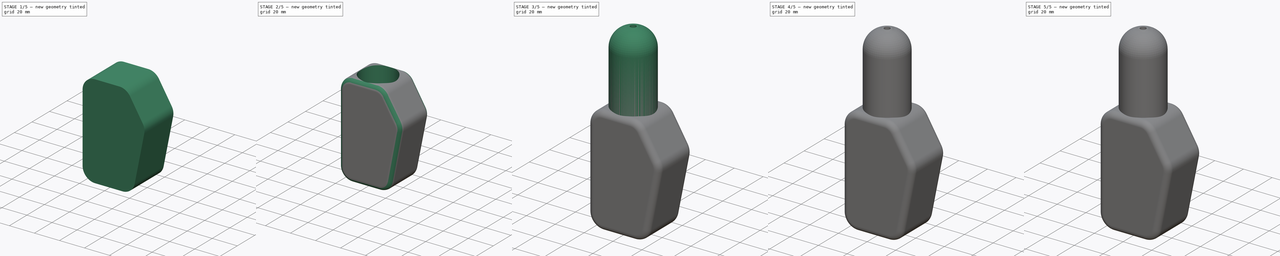
[diagram: build sequence overview — one tinted view per stage of 5, left to right]
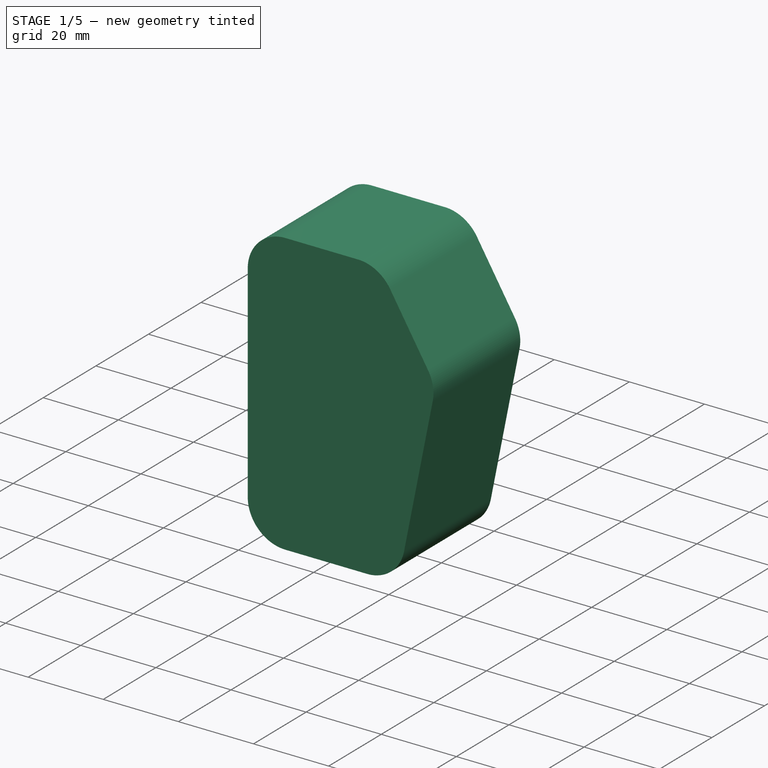
[diagram: stage 1 of 5 — iso view after this stage's code; geometry added in this stage tinted green]
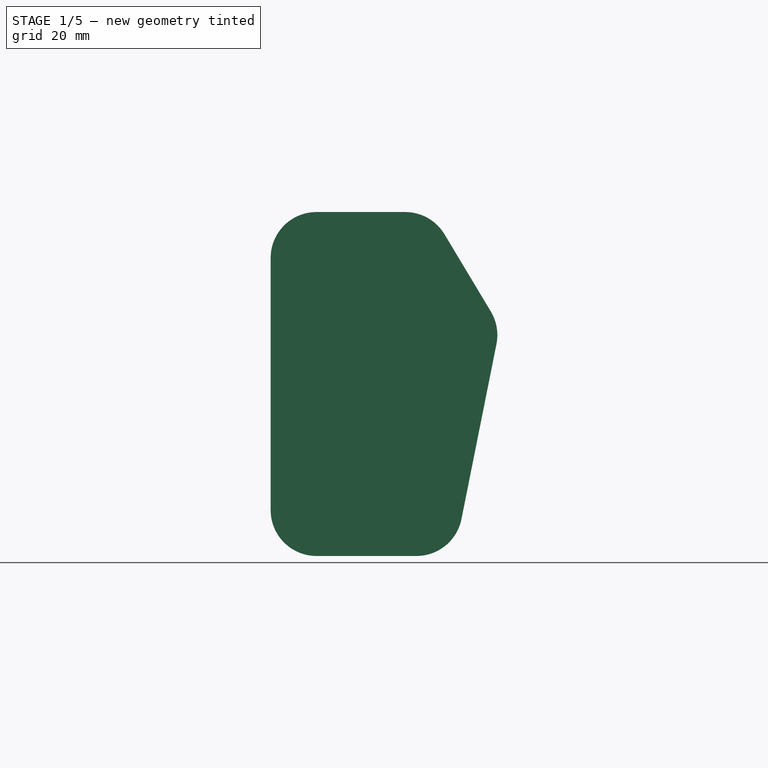
[diagram: stage 1 of 5 — front view after this stage's code; geometry added in this stage tinted green]
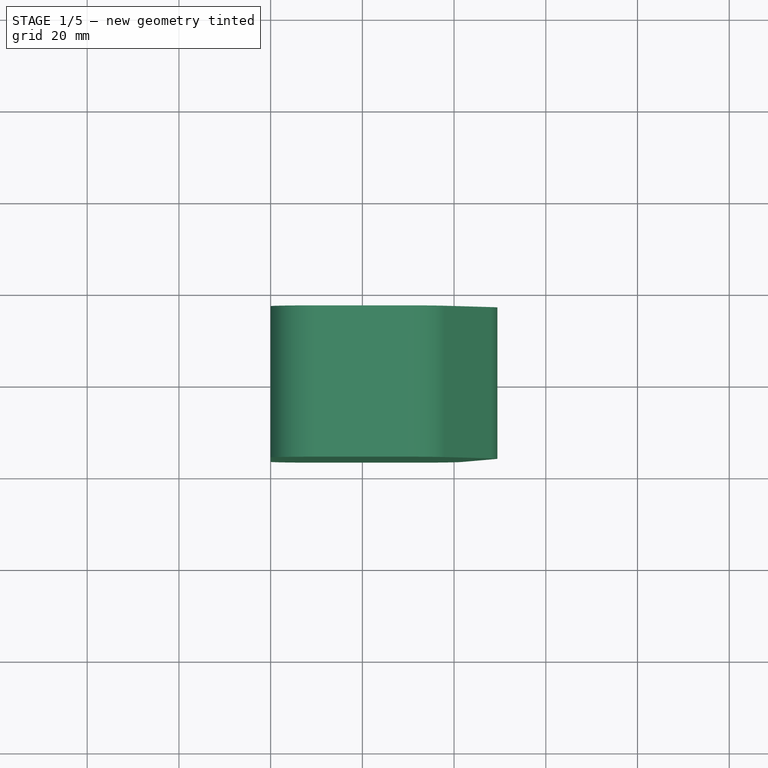
[diagram: stage 1 of 5 — top view after this stage's code; geometry added in this stage tinted green]
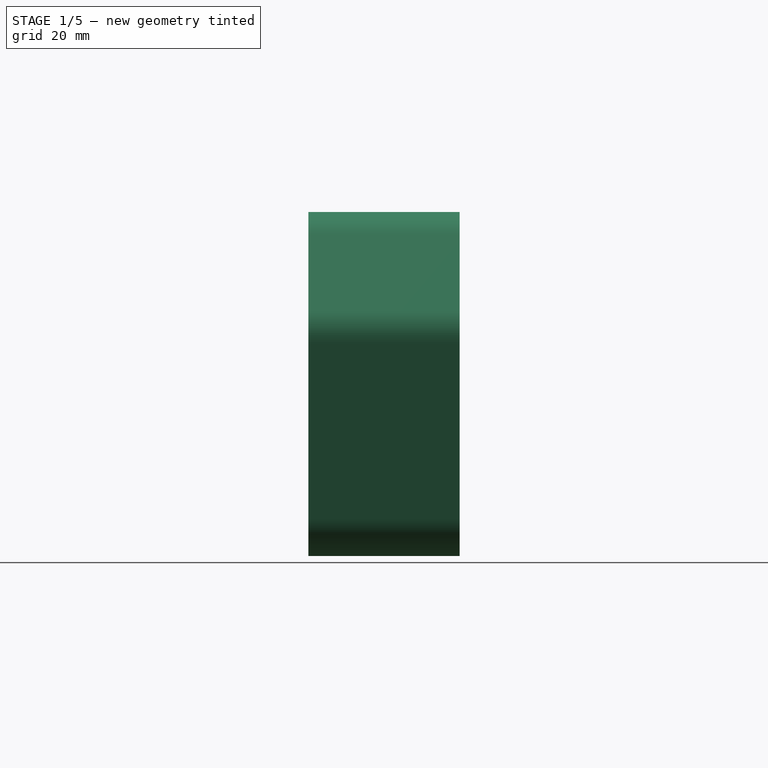
[diagram: stage 1 of 5 — right view after this stage's code; geometry added in this stage tinted green]
FCSTD DOCUMENT  (FreeCAD 1.0RUnknown)
Label: Device_V4
License: All rights reserved
objects: Sketcher::SketchObject×9, PartDesign::Pad×6, PartDesign::Fillet×6, PartDesign::Body×4, PartDesign::Pocket×2, PartDesign::Revolution×1
note: 67 computed .brp shape members not serialized (recipe doc carries the construction recipe); baked Part::Feature solids carry a one-line shape summary decoded from their .brp

FEATURE [PartDesign::Body] Body003  label="몸통003"
  AllowCompound = true
  Group = -> [Sketch006,Revolution,Sketch008,Pad005]
  Origin = -> Origin016
  Placement = pos=(12,10.7,-68) rot=(0,0,1;0rad)
  Tip = -> Pad005
FEATURE [PartDesign::Pad] Pad006
  Direction = (0,-1,2e-16)
  Length = 33
  Length2 = 10
  Midplane = true
  Placement = pos=(0,0,0) rot=(1,0,0;1.5708rad)
  Profile = -> Sketch007
  ReferenceAxis = -> Sketch007 [N_Axis]
  Refine = true
  Suppressed = false
  Type = 0
FEATURE [PartDesign::Fillet] Fillet001
  Base = -> Pad006 [Edge8]
  BaseFeature = -> Pad006
  Placement = pos=(0,0,0) rot=(1,0,0;1.5708rad)
  Radius = 10
  Refine = true
  SupportTransform = false
  Suppressed = false
  UseAllEdges = false
FEATURE [PartDesign::Fillet] Fillet002
  Base = -> Fillet001 [Edge17,Edge18,Edge3,Edge12]
  BaseFeature = -> Fillet001
  Placement = pos=(0,0,0) rot=(1,0,0;1.5708rad)
  Radius = 10
  Refine = true
  SupportTransform = false
  Suppressed = false
  UseAllEdges = false
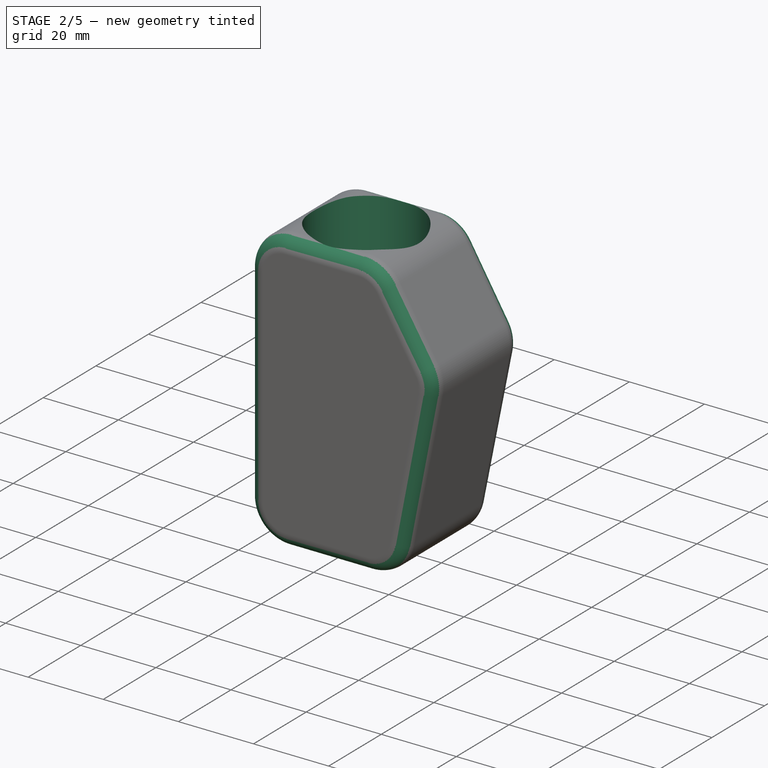
[diagram: stage 2 of 5 — iso view after this stage's code; geometry added in this stage tinted green]
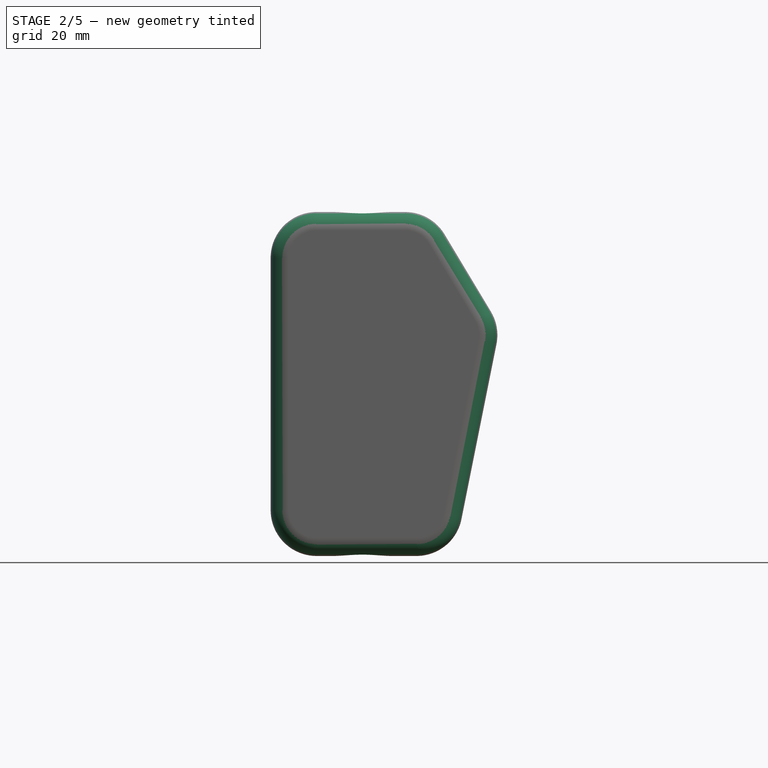
[diagram: stage 2 of 5 — front view after this stage's code; geometry added in this stage tinted green]
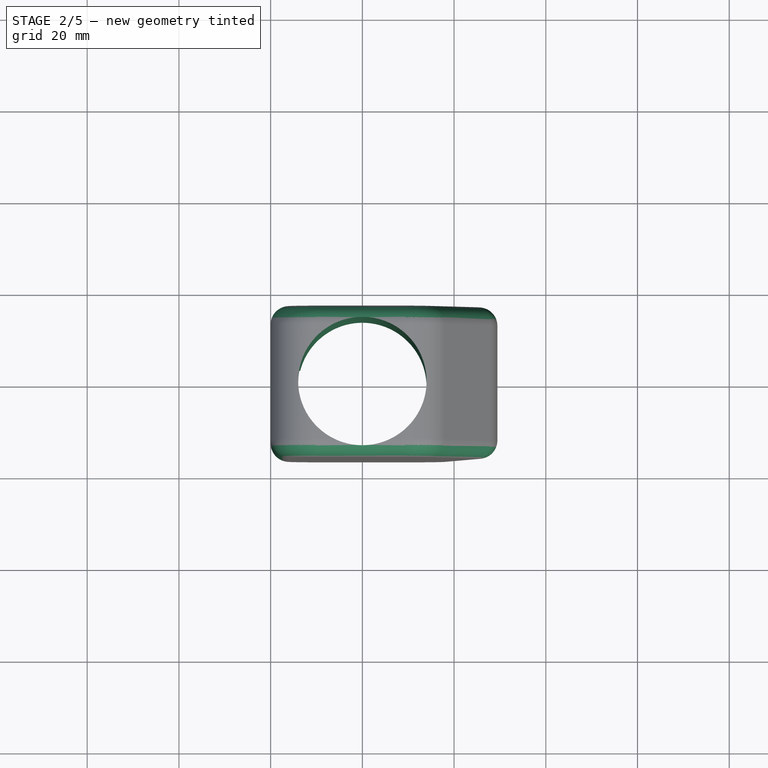
[diagram: stage 2 of 5 — top view after this stage's code; geometry added in this stage tinted green]
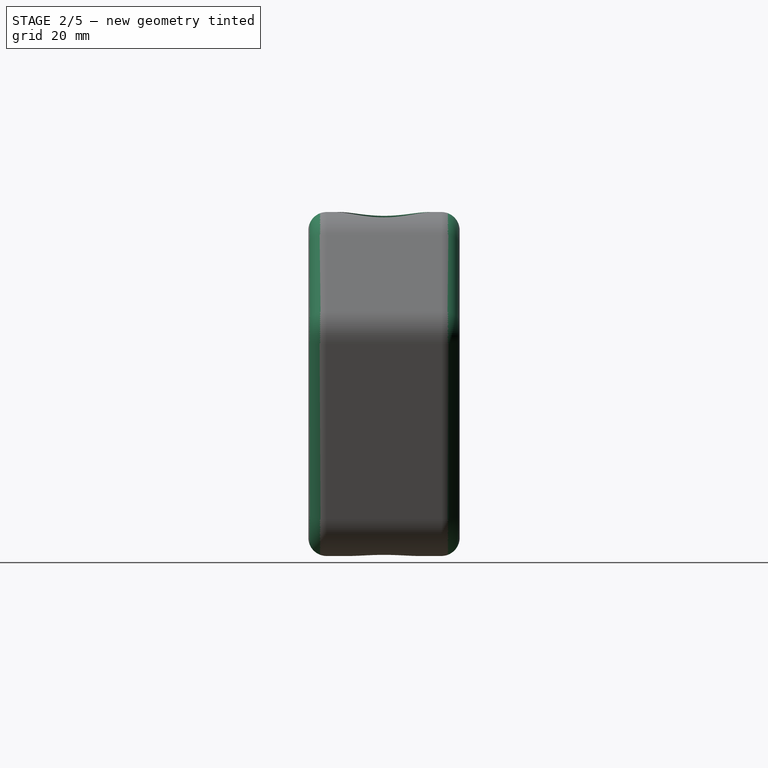
[diagram: stage 2 of 5 — right view after this stage's code; geometry added in this stage tinted green]
FEATURE [PartDesign::Fillet] Fillet003
  Base = -> Fillet002 [Edge22,Edge11]
  BaseFeature = -> Fillet002
  Placement = pos=(0,0,0) rot=(1,0,0;1.5708rad)
  Radius = 4
  Refine = true
  SupportTransform = false
  Suppressed = false
  UseAllEdges = false
FEATURE [Sketcher::SketchObject] Sketch009
  ArcFitTolerance = 1e-06
  AttachmentSupport = -> [Fillet003]
  FullyConstrained = true
  MakeInternals = false
  MapMode = 5
  Placement = pos=(0,1.54e-14,35) rot=(0,0,1;3.14159rad)
  sketch-geometry (1):
    g0: Circle CenterX=0 CenterY=0 CenterZ=0 NormalX=0 NormalY=0 NormalZ=1 AngleXU=0 Radius=14
  constraints (2):
    c: Diameter(g0) = 28
    c: Coincident(g0,g-1)
FEATURE [PartDesign::Pocket] Pocket
  BaseFeature = -> Fillet003
  Direction = (0,0,-1)
  Length = 5
  Length2 = 5
  Placement = pos=(0,0,0) rot=(1,0,0;1.5708rad)
  Profile = -> Sketch009
  ReferenceAxis = -> Sketch009 [N_Axis]
  Refine = true
  Suppressed = false
  Type = 1
FEATURE [Sketcher::SketchObject] Sketch010
  ArcFitTolerance = 1e-06
  AttachmentSupport = -> [Pocket]
  FullyConstrained = true
  MakeInternals = false
  MapMode = 5
  Placement = pos=(0,-1.76e-14,-40) rot=(1,0,0;3.14159rad)
  sketch-geometry (5):
    g0: ArcOfCircle CenterX=0 CenterY=0 CenterZ=0 NormalX=0 NormalY=0 NormalZ=1 AngleXU=0 Radius=14 StartAngle=2.88891 EndAngle=3.39427
    g1: LineSegment StartX=-13.5554 StartY=3.5 StartZ=0 EndX=-17.5554 EndY=3.5 EndZ=0
    g2: LineSegment StartX=-17.5554 StartY=3.5 StartZ=0 EndX=-17.5554 EndY=-3.5 EndZ=0
    g3: LineSegment StartX=-17.5554 StartY=-3.5 StartZ=0 EndX=-13.5554 EndY=-3.5 EndZ=0
    g4: GeomPoint X=-13.5554 Y=0 Z=0
  constraints (13):
    c: Equal(g-3,g0)
    c: Coincident(g1,g0)
    c: Horizontal(g1)
    c: Coincident(g2,g1)
    c: Vertical(g2)
    c: Coincident(g3,g2)
    c: Coincident(g3,g0)
    c: Horizontal(g3)
    c: DistanceY(g2,g2) = 7
    c: DistanceX(g1,g1) = 4
    c: Coincident(g0,g-1)
    c: Symmetric(g0,g0,g4)
    c: PointOnObject(g4,g-1)
FEATURE [PartDesign::Pocket] Pocket001
  BaseFeature = -> Pocket
  Direction = (0,0,1)
  Length = 53
  Length2 = 5
  Placement = pos=(0,0,0) rot=(1,0,0;1.5708rad)
  Profile = -> Sketch010
  ReferenceAxis = -> Sketch010 [N_Axis]
  Refine = true
  Suppressed = false
  Type = 0
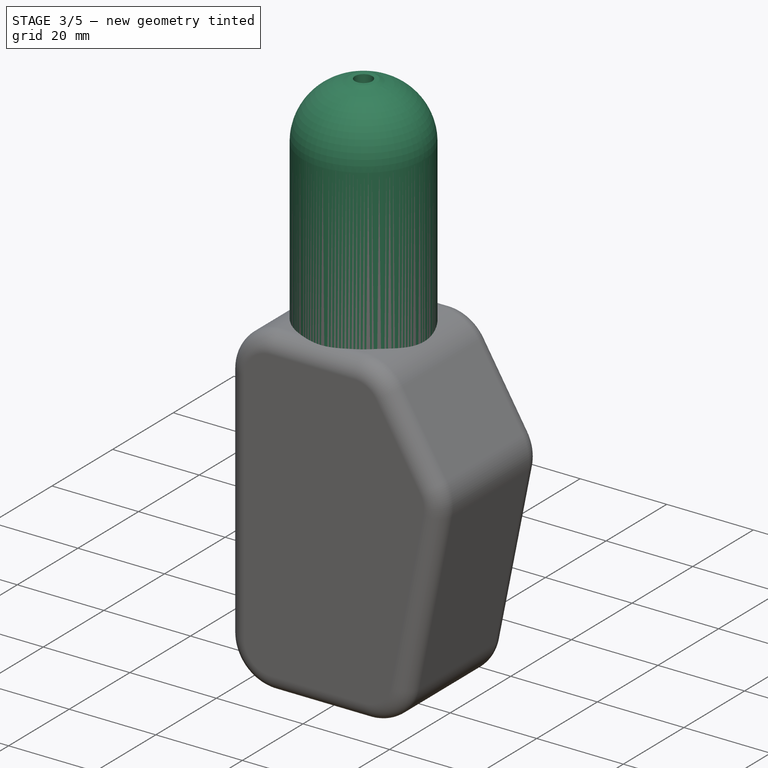
[diagram: stage 3 of 5 — iso view after this stage's code; geometry added in this stage tinted green]
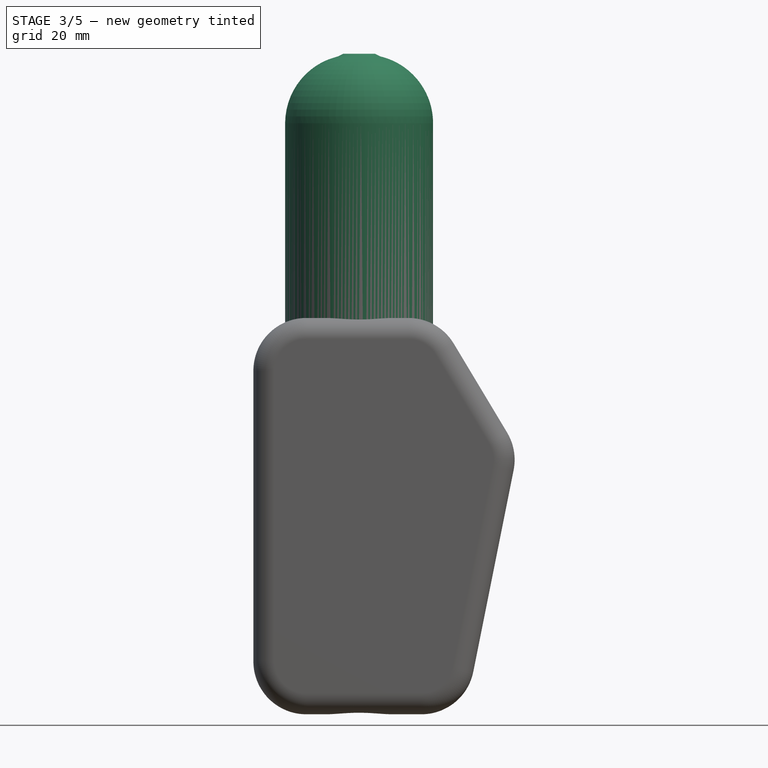
[diagram: stage 3 of 5 — front view after this stage's code; geometry added in this stage tinted green]
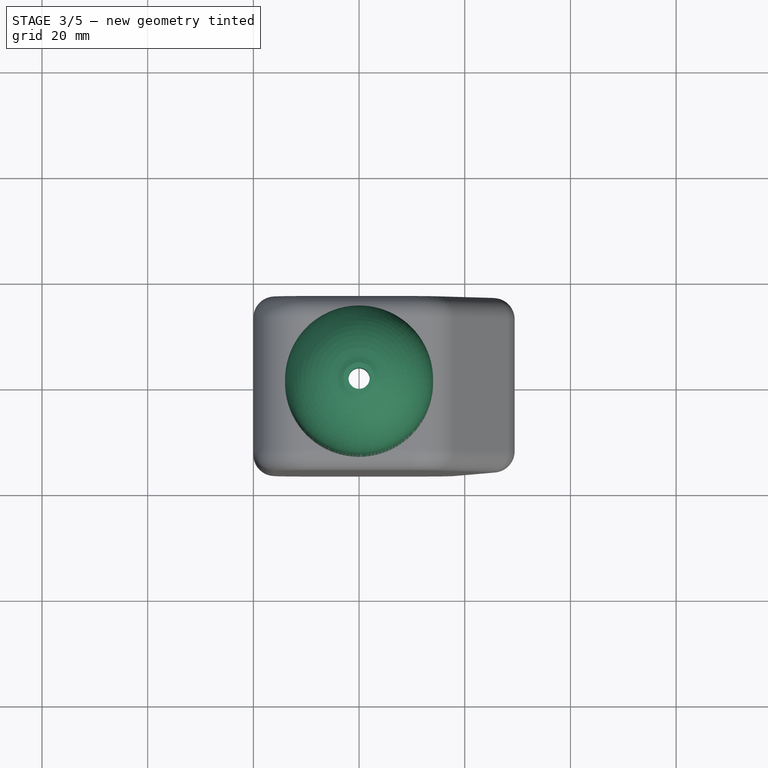
[diagram: stage 3 of 5 — top view after this stage's code; geometry added in this stage tinted green]
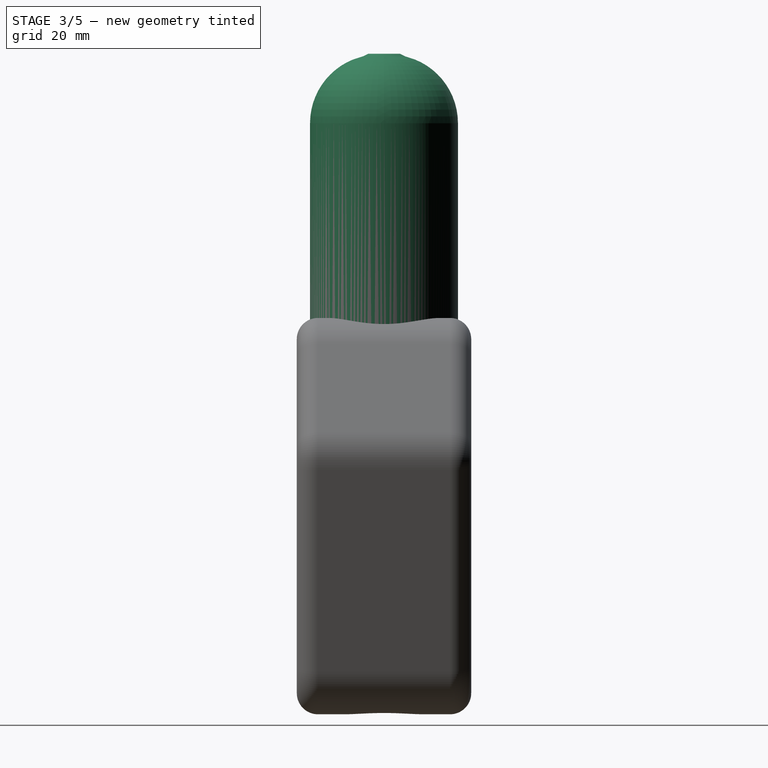
[diagram: stage 3 of 5 — right view after this stage's code; geometry added in this stage tinted green]
FEATURE [PartDesign::Body] Body  label="몸통"
  AllowCompound = true
  Group = -> [Sketch,Pad,Sketch001,Pad001,Sketch005,Pad004,Fillet]
  Origin = -> Origin
  Tip = -> Fillet
FEATURE [Sketcher::SketchObject] Sketch006
  ArcFitTolerance = 1e-06
  AttachmentSupport = -> [XZ_Plane008]
  FullyConstrained = true
  MakeInternals = false
  MapMode = 5
  Placement = pos=(0,0,0) rot=(1,0,0;1.5708rad)
  sketch-geometry (11):
    g0: ArcOfCircle CenterX=1 CenterY=71.8509 CenterZ=0 NormalX=0 NormalY=0 NormalZ=1 AngleXU=0 Radius=13 StartAngle=0 EndAngle=1.33793
    g1: LineSegment StartX=4 StartY=84.5 StartZ=0 EndX=3 EndY=85 EndZ=0
    g2: LineSegment StartX=3 StartY=85 StartZ=0 EndX=2 EndY=85 EndZ=0
    g3: LineSegment StartX=2 StartY=85 StartZ=0 EndX=2 EndY=75 EndZ=0
    g4: LineSegment StartX=2 StartY=75 StartZ=0 EndX=10 EndY=70 EndZ=0
    g5: LineSegment StartX=10 StartY=70 StartZ=0 EndX=10 EndY=0 EndZ=0
    g6: LineSegment [constr] StartX=10 StartY=0 StartZ=0 EndX=14 EndY=0 EndZ=0
    g7: LineSegment [constr] StartX=14 StartY=0 StartZ=0 EndX=14 EndY=71.8509 EndZ=0
    g8: LineSegment StartX=14 StartY=71.8509 StartZ=0 EndX=14 EndY=46.8509 EndZ=0
    g9: LineSegment StartX=14 StartY=46.8509 StartZ=0 EndX=14 EndY=0 EndZ=0
    g10: LineSegment StartX=14 StartY=0 StartZ=0 EndX=10 EndY=0 EndZ=0
  constraints (33):
    c: Coincident(g0,g1)
    c: Coincident(g1,g2)
    c: Horizontal(g2)
    c: Coincident(g2,g3)
    c: Vertical(g3)
    c: Coincident(g3,g4)
    c: Coincident(g4,g5)
    c: Vertical(g5)
    c: Coincident(g5,g6)
    c: Horizontal(g6)
    c: Coincident(g6,g7)
    c: Coincident(g7,g0)
    c: Vertical(g7)
    c: PointOnObject(g5,g-1)
    c: DistanceX(g-1,g3) = 2
    c: DistanceX(g-1,g4) = 10
    c: DistanceY(g5,g5) = 70
    c: DistanceY(g0,g2) = 0.5
    c: DistanceX(g2,g2) = 1
    c: DistanceX(g1,g0) = 1
    c: DistanceY(g3,g3) = 10
    c: DistanceY(g4,g3) = 5
    c: Radius(g0) = 13
    c: Horizontal(g0,g0)
    c: DistanceX(g-1,g0) = 14
    c: Coincident(g8,g0)
    c: PointOnObject(g9,g-1)
    c: Vertical(g9)
    c: Coincident(g10,g9)
    c: Coincident(g10,g5)
    c: DistanceY(g8,g8) = 25
    c: Vertical(g8)
    c: Coincident(g9,g8)
FEATURE [PartDesign::Revolution] Revolution
  Angle = 360
  Angle2 = 60
  Axis = (0,2e-16,1)
  Base = (0,0,0)
  Placement = pos=(0,0,0) rot=(1,0,0;1.5708rad)
  Profile = -> Sketch006
  ReferenceAxis = -> Sketch006 [V_Axis]
  Refine = true
  Reversed = true
  Suppressed = false
  Type = 0
FEATURE [PartDesign::Fillet] Fillet004
  Base = -> Pocket001 [Edge33,Edge25]
  BaseFeature = -> Pocket001
  Placement = pos=(0,0,0) rot=(1,0,0;1.5708rad)
  Radius = 1
  Refine = true
  SupportTransform = false
  Suppressed = false
  UseAllEdges = false
FEATURE [PartDesign::Fillet] Fillet005
  Base = -> Pocket001 [Edge7]
  BaseFeature = -> Pocket001
  Placement = pos=(0,0,0) rot=(1,0,0;1.5708rad)
  Radius = 1
  Refine = true
  SupportTransform = false
  Suppressed = false
  UseAllEdges = false
FEATURE [PartDesign::Body] Body004  label="몸통004"
  AllowCompound = true
  Group = -> [Sketch007,Pad006,Fillet001,Fillet002,Fillet003,Sketch009,Pocket,Sketch010,Pocket001,Fillet004,Fillet005]
  Origin = -> Origin017
  Placement = pos=(12,10.7,-31) rot=(0,0,1;0rad)
  Tip = -> Fillet005
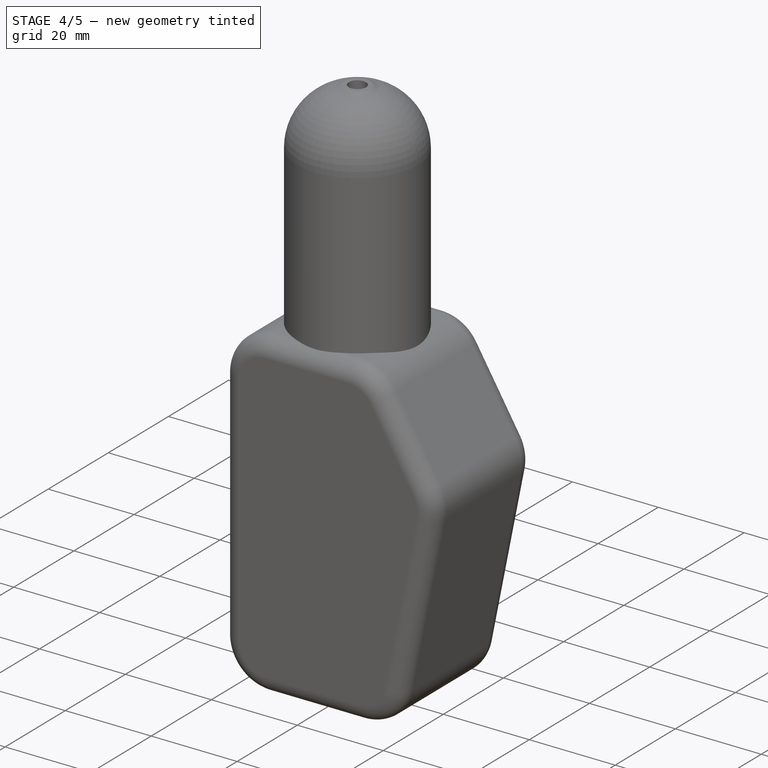
[diagram: stage 4 of 5 — iso view after this stage's code; geometry added in this stage tinted green]
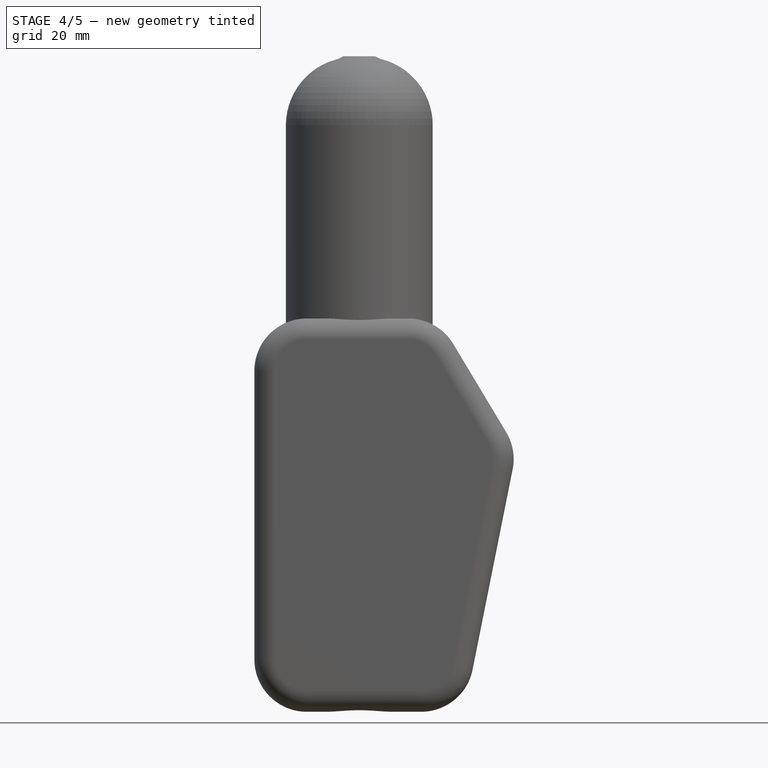
[diagram: stage 4 of 5 — front view after this stage's code; geometry added in this stage tinted green]
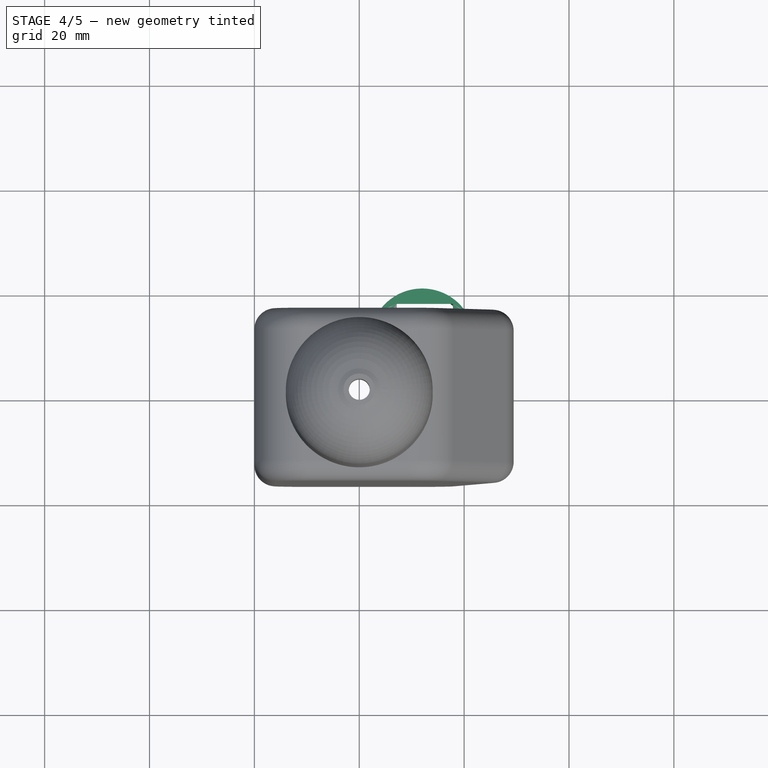
[diagram: stage 4 of 5 — top view after this stage's code; geometry added in this stage tinted green]
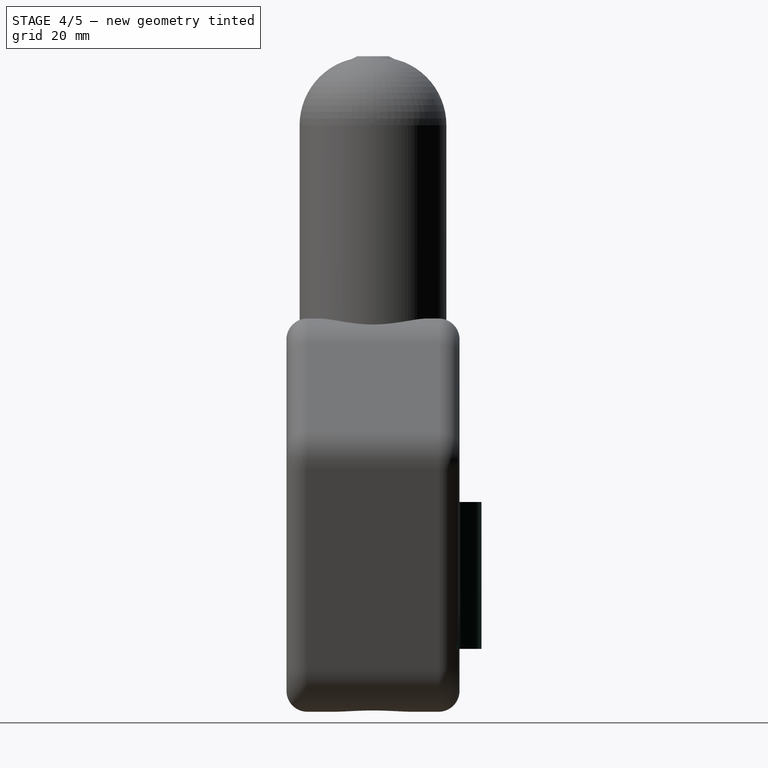
[diagram: stage 4 of 5 — right view after this stage's code; geometry added in this stage tinted green]
FEATURE [Sketcher::SketchObject] Sketch
  ArcFitTolerance = 1e-06
  AttachmentSupport = -> [Origin]
  FullyConstrained = true
  MakeInternals = false
  MapMode = 5
  sketch-geometry (2):
    g0: Circle CenterX=12 CenterY=10.7 CenterZ=0 NormalX=0 NormalY=0 NormalZ=1 AngleXU=0 Radius=9.25
    g1: Circle CenterX=12 CenterY=10.7 CenterZ=0 NormalX=0 NormalY=0 NormalZ=1 AngleXU=0 Radius=10
  constraints (5):
    c: Diameter(g0) = 18.5
    c: DistanceY(g-1,g0) = 10.7
    c: DistanceX(g-1,g0) = 12
    c: Diameter(g1) = 20
    c: Coincident(g1,g0)
FEATURE [PartDesign::Pad] Pad
  Direction = (0,0,1)
  Length = 28
  Length2 = 10
  Profile = -> Sketch
  ReferenceAxis = -> Sketch [N_Axis]
  Refine = true
  Reversed = true
  Suppressed = false
  Type = 0
FEATURE [Sketcher::SketchObject] Sketch001
  ArcFitTolerance = 1e-06
  AttachmentSupport = -> [Pad]
  ExternalGeometry = -> [Pad]
  FullyConstrained = true
  MakeInternals = false
  MapMode = 5
  sketch-geometry (5):
    g0: LineSegment StartX=7.15 StartY=17.8 StartZ=0 EndX=7.15 EndY=4.3 EndZ=0
    g1: LineSegment StartX=7.15 StartY=4.3 StartZ=0 EndX=17.85 EndY=4.3 EndZ=0
    g2: LineSegment StartX=17.85 StartY=4.3 StartZ=0 EndX=17.85 EndY=17.8 EndZ=0
    g3: LineSegment StartX=17.85 StartY=17.8 StartZ=0 EndX=7.15 EndY=17.8 EndZ=0
    g4: Circle CenterX=12 CenterY=10.7 CenterZ=0 NormalX=0 NormalY=0 NormalZ=1 AngleXU=0 Radius=10
  constraints (14):
    c: Coincident(g0,g1)
    c: Coincident(g1,g2)
    c: Coincident(g2,g3)
    c: Coincident(g3,g0)
    c: Vertical(g0)
    c: Vertical(g2)
    c: Horizontal(g1)
    c: Horizontal(g3)
    c: Distance(g0,g2) = 10.7
    c: Distance(g1,g3) = 13.5
    c: DistanceY(g-1,g0) = 4.3
    c: DistanceX(g-1,g0) = 7.15
    c: Coincident(g4,g-3)
    c: Equal(g4,g-3)
FEATURE [PartDesign::Pad] Pad001
  BaseFeature = -> Pad
  Direction = (0,0,1)
  Length = 2
  Length2 = 10
  Profile = -> Sketch001
  ReferenceAxis = -> Sketch001 [N_Axis]
  Refine = true
  Reversed = true
  Suppressed = false
  Type = 0
FEATURE [Sketcher::SketchObject] Sketch007
  ArcFitTolerance = 1e-06
  AttachmentSupport = -> [XZ_Plane009]
  FullyConstrained = true
  MakeInternals = false
  MapMode = 5
  Placement = pos=(0,0,0) rot=(1,0,0;1.5708rad)
  sketch-geometry (5):
    g0: LineSegment StartX=-20 StartY=35 StartZ=0 EndX=-20 EndY=-40 EndZ=0
    g1: LineSegment StartX=-20 StartY=-40 StartZ=0 EndX=20 EndY=-40 EndZ=0
    g2: LineSegment StartX=20 StartY=-40 StartZ=0 EndX=30 EndY=10 EndZ=0
    g3: LineSegment StartX=30 StartY=10 StartZ=0 EndX=15 EndY=35 EndZ=0
    g4: LineSegment StartX=-20 StartY=35 StartZ=0 EndX=15 EndY=35 EndZ=0
  constraints (15):
    c: Vertical(g0)
    c: Coincident(g0,g1)
    c: Horizontal(g1)
    c: Coincident(g1,g2)
    c: Coincident(g2,g3)
    c: Horizontal(g4)
    c: Coincident(g4,g3)
    c: Coincident(g0,g4)
    c: DistanceY(g-1,g0) = 35
    c: DistanceX(g0,g-1) = 20
    c: DistanceX(g4,g4) = 35
    c: DistanceX(g1,g1) = 40
    c: DistanceY(g0,g0) = 75
    c: DistanceY(g-1,g2) = 10
    c: DistanceX(g-1,g2) = 30
FEATURE [Sketcher::SketchObject] Sketch008
  ArcFitTolerance = 1e-06
  AttachmentSupport = -> [Revolution]
  ExternalGeometry = -> [Revolution]
  FullyConstrained = true
  MakeInternals = false
  MapMode = 5
  Placement = pos=(0,0,0) rot=(1,0,0;3.14159rad)
  sketch-geometry (5):
    g0: ArcOfCircle CenterX=-1.6e-15 CenterY=1.4e-15 CenterZ=0 NormalX=0 NormalY=0 NormalZ=1 AngleXU=0 Radius=14 StartAngle=2.88891 EndAngle=3.39427
    g1: LineSegment StartX=-13.5554 StartY=3.5 StartZ=0 EndX=-16.5554 EndY=3.5 EndZ=0
    g2: LineSegment StartX=-16.5554 StartY=3.5 StartZ=0 EndX=-16.5554 EndY=-3.5 EndZ=0
    g3: LineSegment StartX=-16.5554 StartY=-3.5 StartZ=0 EndX=-13.5554 EndY=-3.5 EndZ=0
    g4: GeomPoint X=-16.5554 Y=0 Z=0
  constraints (14):
    c: PointOnObject(g0,g-3)
    c: PointOnObject(g0,g-3)
    c: Equal(g0,g-3)
    c: Coincident(g0,g1)
    c: Coincident(g1,g2)
    c: Coincident(g2,g3)
    c: Coincident(g3,g0)
    c: Vertical(g2)
    c: Horizontal(g3)
    c: Horizontal(g1)
    c: Symmetric(g2,g1,g4)
    c: PointOnObject(g4,g-1)
    c: DistanceX(g1,g1) = 3
    c: DistanceY(g2,g2) = 7
FEATURE [PartDesign::Pad] Pad005
  BaseFeature = -> Revolution
  Direction = (0,0,-1)
  Length = 10
  Length2 = 10
  Placement = pos=(0,0,0) rot=(1,0,0;1.5708rad)
  Profile = -> Sketch008
  ReferenceAxis = -> Sketch008 [N_Axis]
  Refine = true
  Reversed = true
  Suppressed = false
  Type = 0
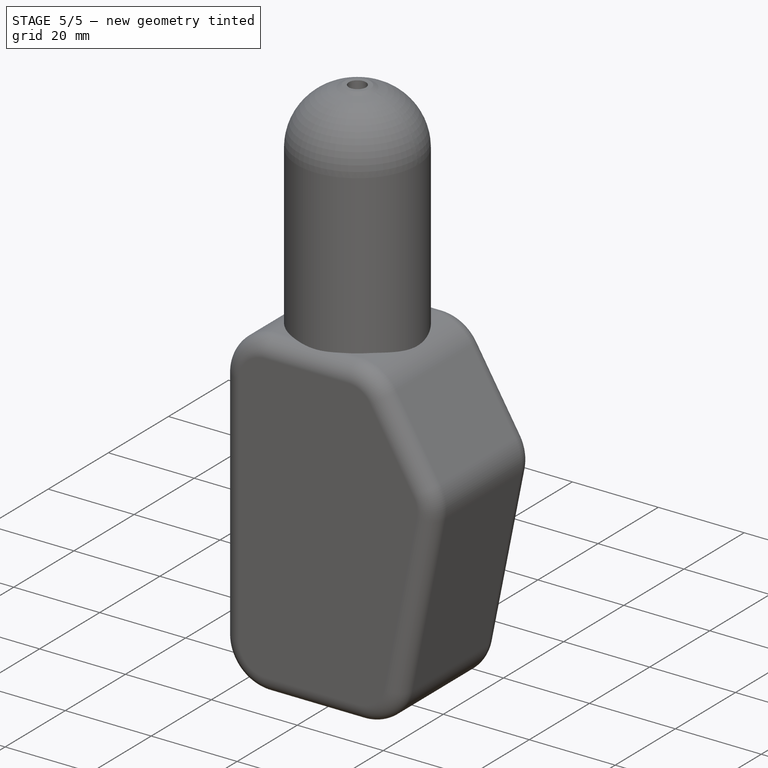
[diagram: stage 5 of 5 — iso view after this stage's code; geometry added in this stage tinted green]
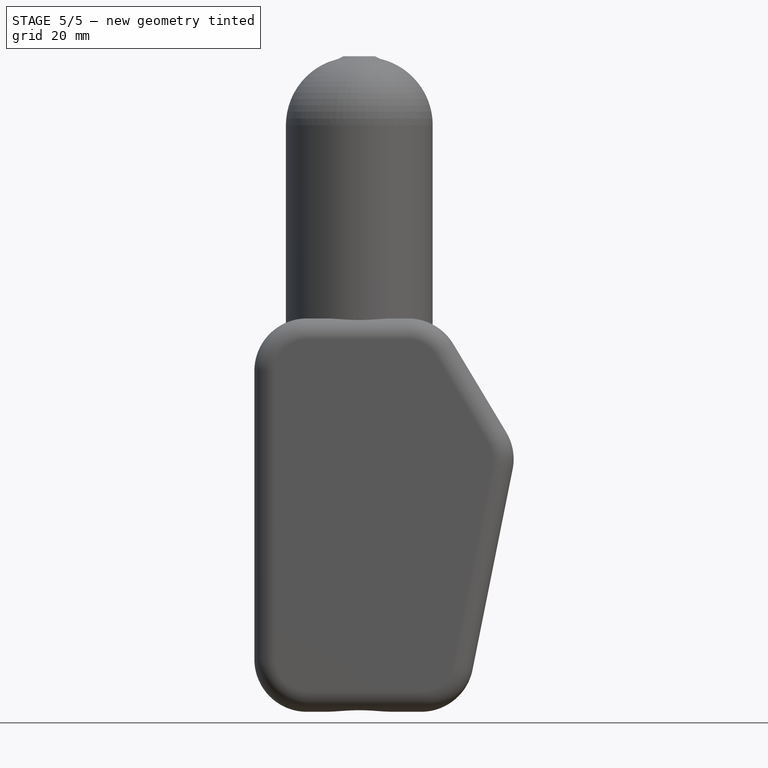
[diagram: stage 5 of 5 — front view after this stage's code; geometry added in this stage tinted green]
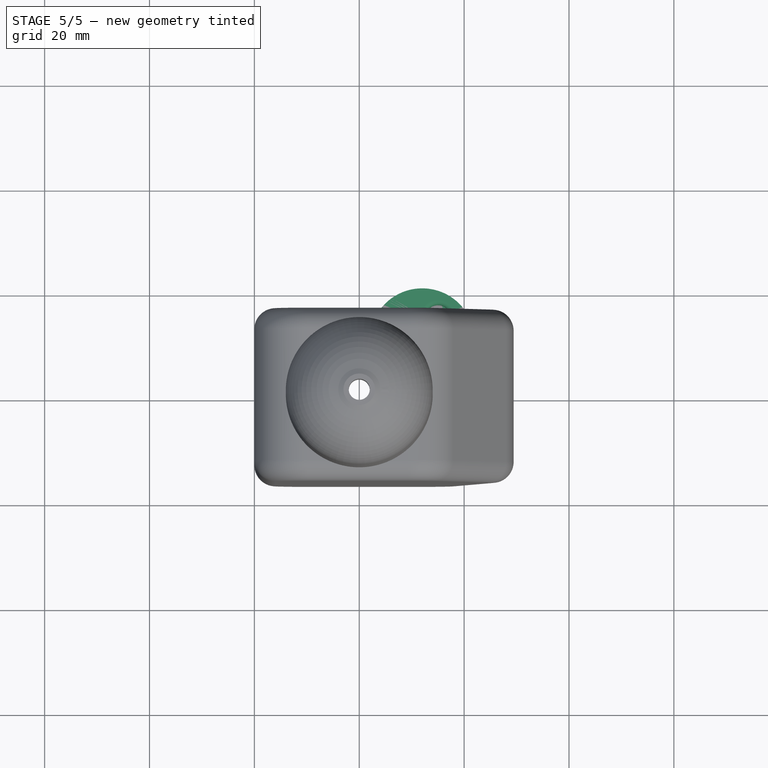
[diagram: stage 5 of 5 — top view after this stage's code; geometry added in this stage tinted green]
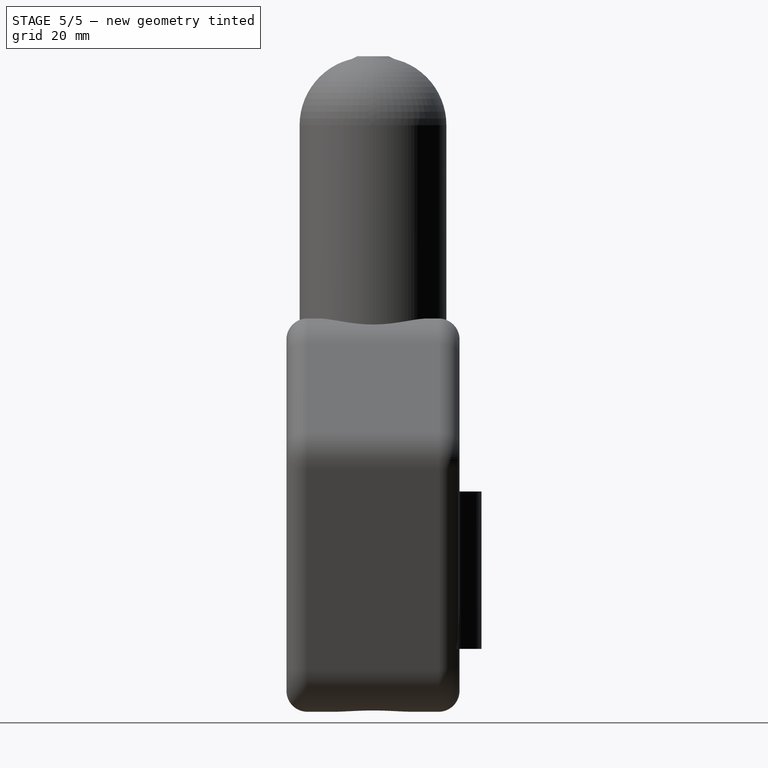
[diagram: stage 5 of 5 — right view after this stage's code; geometry added in this stage tinted green]
FEATURE [Sketcher::SketchObject] Sketch004
  ArcFitTolerance = 1e-06
  AttachmentOffset = pos=(0,0,-28) rot=(0,0,1;0rad)
  AttachmentSupport = -> [Origin015]
  FullyConstrained = true
  MakeInternals = false
  MapMode = 5
  Placement = pos=(0,0,-28) rot=(0,0,1;0rad)
  sketch-geometry (5):
    g0: Circle CenterX=12 CenterY=10.7 CenterZ=0 NormalX=0 NormalY=0 NormalZ=1 AngleXU=0 Radius=9.25
    g1: LineSegment StartX=6 StartY=7 StartZ=0 EndX=18 EndY=7 EndZ=0
    g2: LineSegment StartX=18 StartY=7 StartZ=0 EndX=18 EndY=10 EndZ=0
    g3: LineSegment StartX=18 StartY=10 StartZ=0 EndX=6 EndY=10 EndZ=0
    g4: LineSegment StartX=6 StartY=10 StartZ=0 EndX=6 EndY=7 EndZ=0
  constraints (15):
    c: Diameter(g0) = 18.5
    c: DistanceY(g-1,g0) = 10.7
    c: DistanceX(g-1,g0) = 12
    c: Coincident(g1,g2)
    c: Coincident(g2,g3)
    c: Coincident(g3,g4)
    c: Coincident(g4,g1)
    c: Horizontal(g1)
    c: Horizontal(g3)
    c: Vertical(g2)
    c: Vertical(g4)
    c: Distance(g2,g4) = 12
    c: Distance(g1,g3) = 3
    c: DistanceY(g-1,g1) = 7
    c: DistanceX(g-1,g1) = 6
FEATURE [PartDesign::Pad] Pad003
  Direction = (0,0,1)
  Length = 1.5
  Length2 = 10
  Profile = -> Sketch004
  ReferenceAxis = -> Sketch004 [N_Axis]
  Refine = true
  Suppressed = false
  Type = 0
FEATURE [PartDesign::Body] Body002  label="몸통002"
  AllowCompound = true
  Group = -> [Sketch004,Pad003]
  Origin = -> Origin015
  Tip = -> Pad003
FEATURE [Sketcher::SketchObject] Sketch005
  ArcFitTolerance = 1e-06
  AttachmentSupport = -> [Pad001]
  ExternalGeometry = -> [Pad001]
  FullyConstrained = true
  MakeInternals = false
  MapMode = 5
  sketch-geometry (2):
    g0: Circle CenterX=12 CenterY=10.7 CenterZ=0 NormalX=0 NormalY=0 NormalZ=1 AngleXU=0 Radius=10
    g1: Circle CenterX=15 CenterY=15 CenterZ=0 NormalX=0 NormalY=0 NormalZ=1 AngleXU=0 Radius=2.5
  constraints (5):
    c: Coincident(g0,g-3)
    c: Equal(g0,g-3)
    c: Diameter(g1) = 5
    c: DistanceY(g0,g1) = 4.3
    c: DistanceX(g0,g1) = 3
FEATURE [PartDesign::Pad] Pad004
  BaseFeature = -> Pad001
  Direction = (0,0,1)
  Length = 2
  Length2 = 10
  Profile = -> Sketch005
  ReferenceAxis = -> Sketch005 [N_Axis]
  Refine = true
  Suppressed = false
  Type = 0
FEATURE [PartDesign::Fillet] Fillet
  Base = -> Pad004 [Edge19]
  BaseFeature = -> Pad004
  Radius = 1
  Refine = true
  SupportTransform = false
  Suppressed = false
  UseAllEdges = false
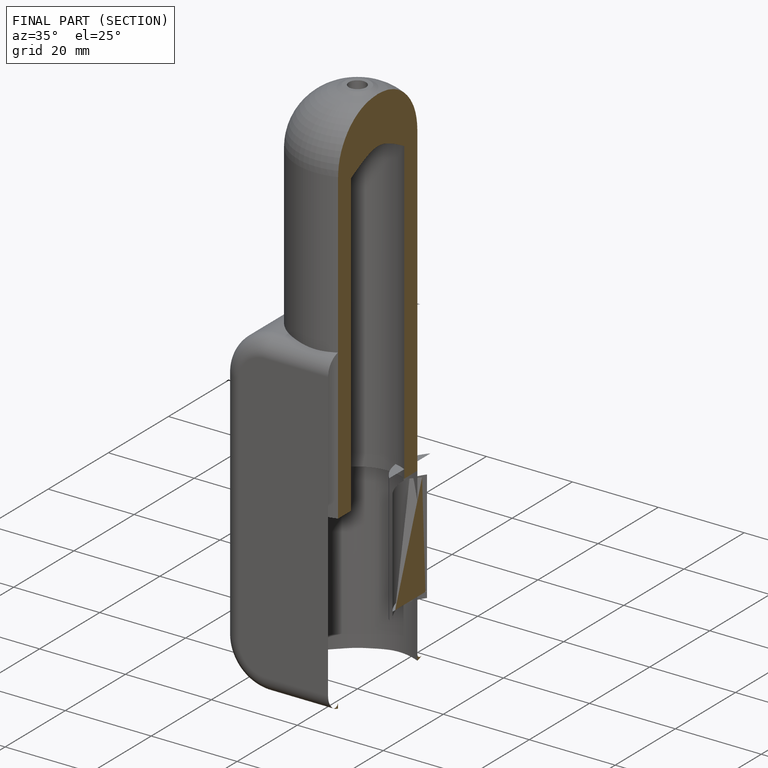
[diagram: finished part — half-section view (interior)]
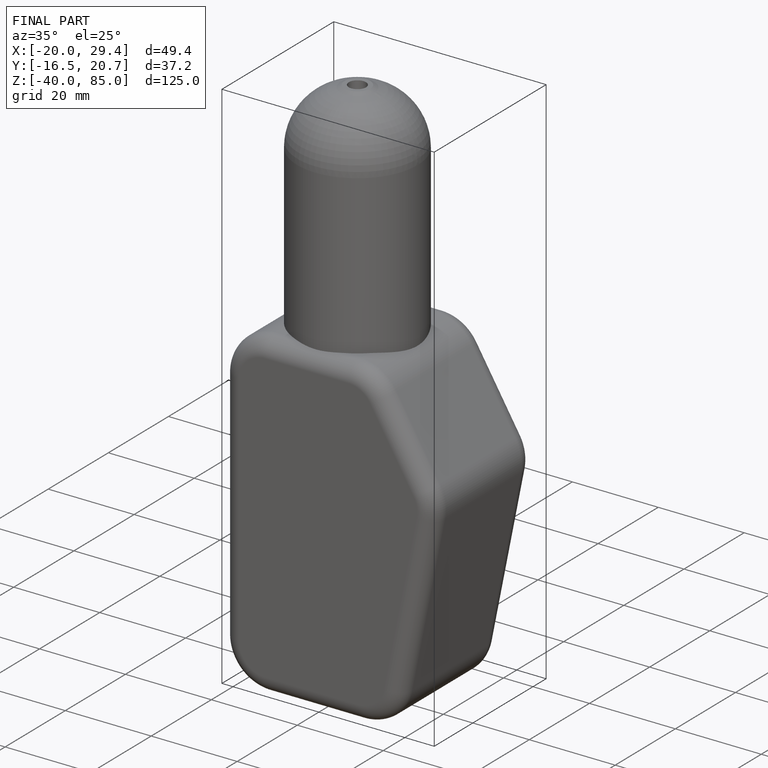
[diagram: finished part — iso view with bounding-box wireframe]
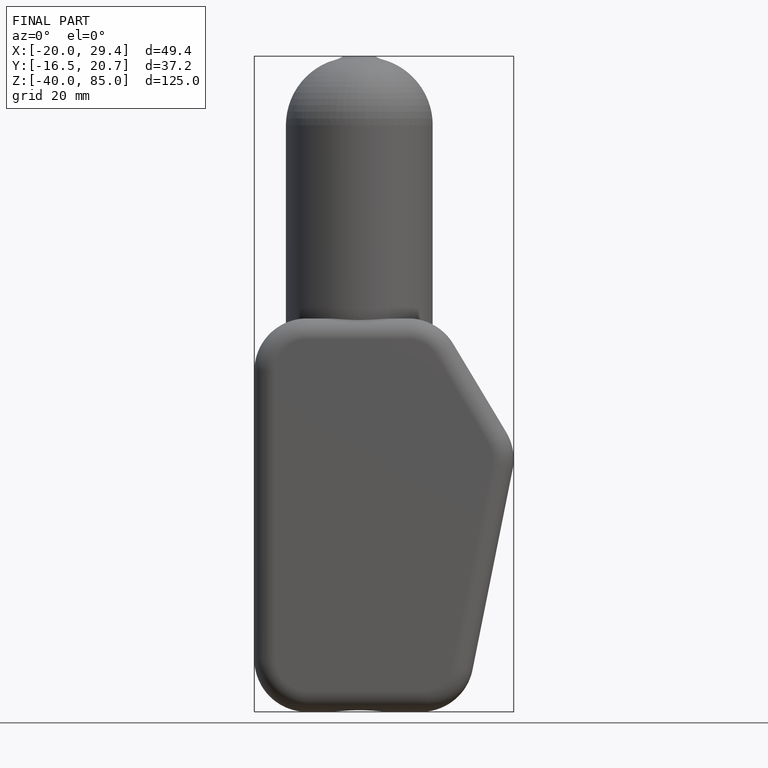
[diagram: finished part — front view with bounding-box wireframe]
